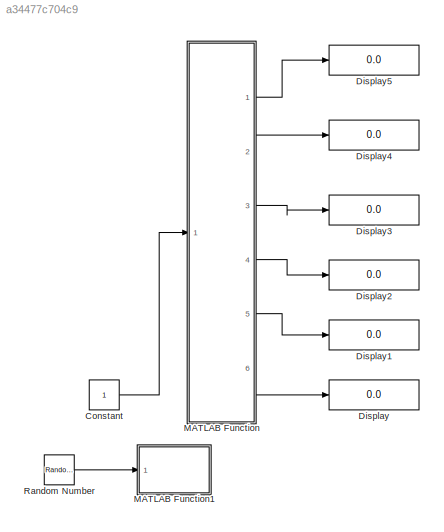
MODEL slx_a34477c704c9
KIND model
CONFIG AbsTol = auto
CONFIG EnableMultiTasking = on
CONFIG FixedStep = 0.2
CONFIG MaxStep = auto
CONFIG MinStep = auto
CONFIG RelTol = 1e-3
CONFIG SampleTimeConstraint = Unconstrained
CONFIG Solver = VariableStepAuto
CONFIG SolverName = VariableStepAuto
CONFIG StartTime = 0.0
CONFIG StopTime = 10
BLOCK [Constant] Constant
BLOCK [Display] Display
  Decimation = 2
  Ports = [1]
BLOCK [Display] Display1
  Decimation = 2
  Ports = [1]
BLOCK [Display] Display2
  Decimation = 2
  Ports = [1]
BLOCK [Display] Display3
  Decimation = 2
  Ports = [1]
BLOCK [Display] Display4
  Decimation = 2
  Ports = [1]
BLOCK [Display] Display5
  Decimation = 2
  Ports = [1]
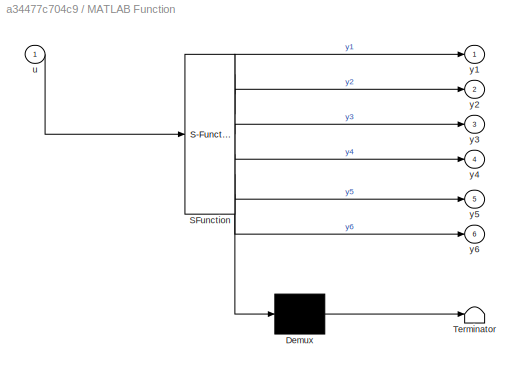
BLOCK [SubSystem] MATLAB Function
  ErrorFcn = Stateflow.Translate.translate
  PermitHierarchicalResolution = ExplicitOnly
  Ports = [1, 6]
  RequestExecContextInheritance = off
  SFBlockType = MATLAB Function
  TreatAsAtomicUnit = on
BLOCK [Demux] MATLAB Function/ Demux 
  Outputs = 1
  Ports = [1, 1]
BLOCK [S-Function] MATLAB Function/ SFunction 
  EnableBusSupport = on
  FunctionName = sf_sfun
  PortCounts = [1 7]
  Ports = [1, 7]
  SFcnIsStateOwnerBlock = off
  SFunctionDeploymentMode = off
  Tag = Stateflow S-Function Copy_of_Test 1
BLOCK [Terminator] MATLAB Function/ Terminator 
BLOCK [Inport] MATLAB Function/u
  IconDisplay = Port number
BLOCK [Outport] MATLAB Function/y1
  IconDisplay = Port number
BLOCK [Outport] MATLAB Function/y2
  IconDisplay = Port number
  Port = 2
BLOCK [Outport] MATLAB Function/y3
  IconDisplay = Port number
  Port = 3
BLOCK [Outport] MATLAB Function/y4
  IconDisplay = Port number
  Port = 4
BLOCK [Outport] MATLAB Function/y5
  IconDisplay = Port number
  Port = 5
BLOCK [Outport] MATLAB Function/y6
  IconDisplay = Port number
  Port = 6
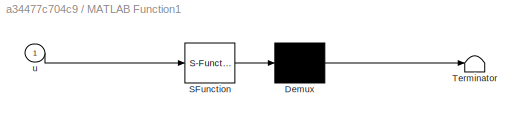
BLOCK [SubSystem] MATLAB Function1
  ErrorFcn = Stateflow.Translate.translate
  PermitHierarchicalResolution = ExplicitOnly
  Ports = [1]
  RequestExecContextInheritance = off
  SFBlockType = MATLAB Function
  TreatAsAtomicUnit = on
BLOCK [Demux] MATLAB Function1/ Demux 
  Outputs = 1
  Ports = [1, 1]
BLOCK [S-Function] MATLAB Function1/ SFunction 
  EnableBusSupport = on
  FunctionName = sf_sfun
  PortCounts = [1 1]
  Ports = [1, 1]
  SFcnIsStateOwnerBlock = off
  SFunctionDeploymentMode = off
  Tag = Stateflow S-Function Copy_of_Test 2
BLOCK [Terminator] MATLAB Function1/ Terminator 
BLOCK [Inport] MATLAB Function1/u
  IconDisplay = Port number
BLOCK [RandomNumber] Random Number
  Mean = 5
  Variance = 5
LINE Constant:1 -> MATLAB Function:1
LINE MATLAB Function:1 -> Display5:1
LINE MATLAB Function:2 -> Display4:1
LINE MATLAB Function:3 -> Display3:1
LINE MATLAB Function:4 -> Display2:1
LINE MATLAB Function:5 -> Display1:1
LINE MATLAB Function:6 -> Display:1
LINE Random Number:1 -> MATLAB Function1:1
CHART MATLAB Function states=1 transitions=1
  STATE_LABEL 'eML_blk_kernel()'
  STATE_LABEL "SCRIPT:\nfunction [y1,y2,y3,y4,y5,y6] = fcn(u)\ncoder.extrinsic('AdsReadBulk');\ny1 = int16(0);\ny2 = int32(0);\ny3 = int32(0);\ny4 = int8(0);\ny5 = single(0);\ny6 = double(0);\nif u==1\n    [y1, y2, y3, y4, y5, y6] = AdsReadBulk();\nend\nend\n"
CHART MATLAB Function1 states=1 transitions=1
  STATE_LABEL 'eML_blk_kernel()'
  STATE_LABEL "SCRIPT:\nfunction fcn(u)\ncoder.extrinsic('AdsWriteBulk');\n    AdsWriteBulk( u);\nend\n"
